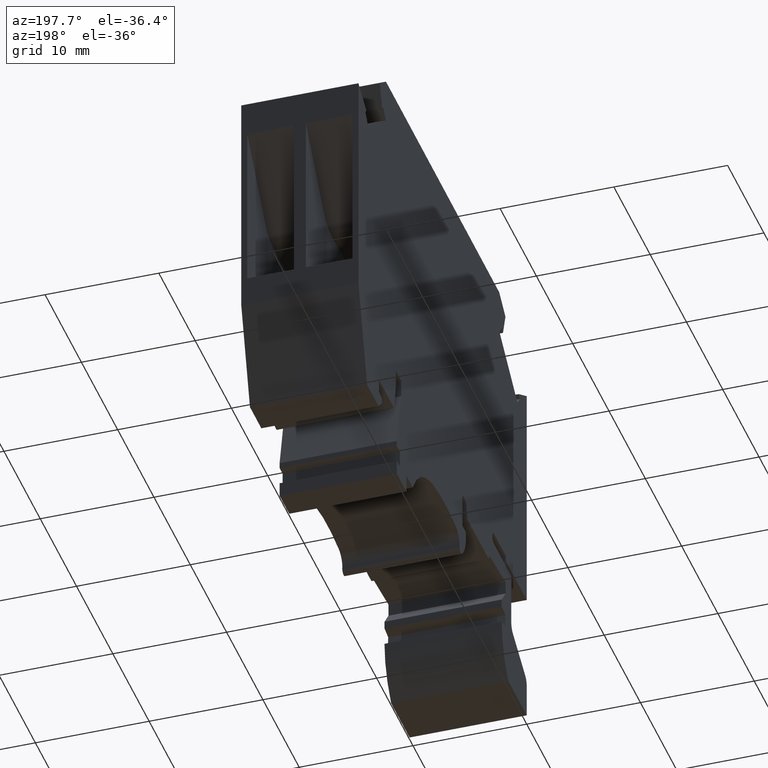
[diagram: clean part render]
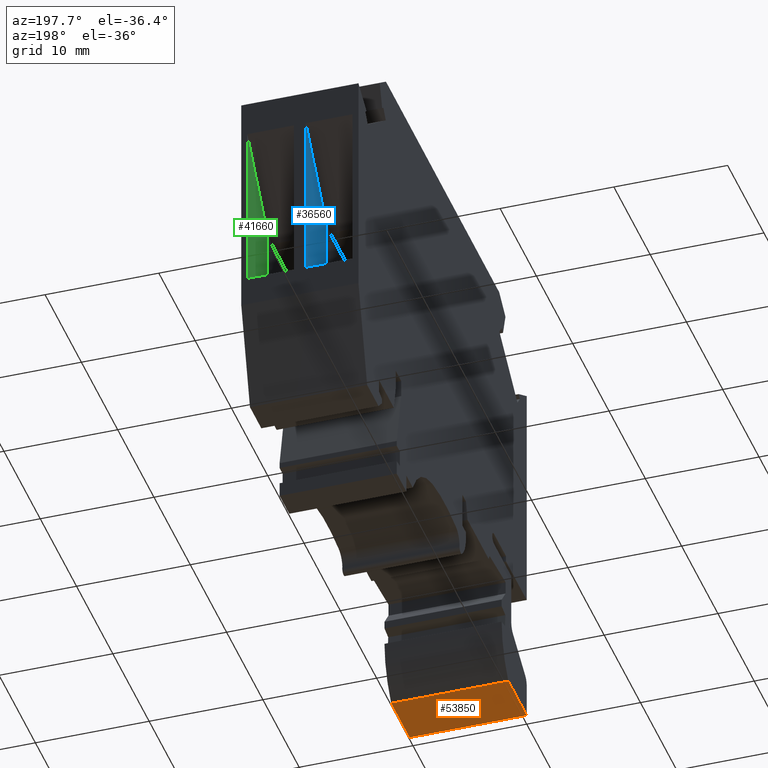
[diagram: same view with three faces highlighted in distinct colors, each labeled with its STEP entity id]
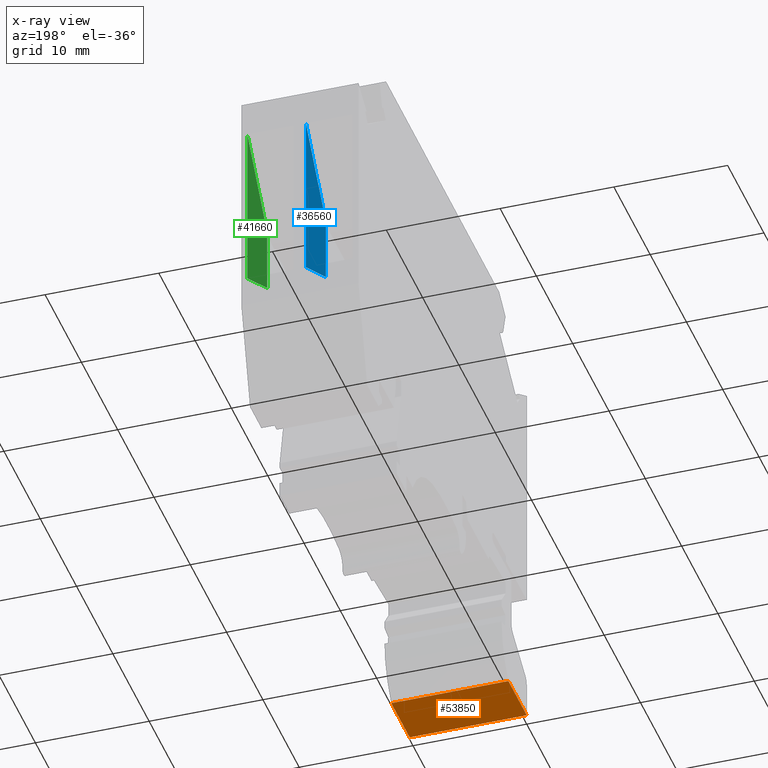
[diagram: x-ray of the same camera — body ghosted, the three highlighted faces saturated]
A machine part, auxiliary view with three faces highlighted in distinct colors.
The next image is the same camera in x-ray (body ghosted, the three faces saturated) — at least one of them is partly hidden behind the body in this view.
Their STEP definitions:

[orange] entity #53850 — the highlighted planar face has unit normal (0, 0, -1).
#4820=CARTESIAN_POINT('',(-39.7810787227897,4.22952375155828,10.3));
#4830=VERTEX_POINT('',#4820);
#4860=CARTESIAN_POINT('',(-56.8069065338077,4.22952375155828,10.3));
#4870=DIRECTION('',(1.,0.,0.));
#4880=VECTOR('',#4870,1.);
#4890=LINE('',#4860,#4880);
#4900=CARTESIAN_POINT('',(-44.8520985338077,4.22952375155828,10.3));
#4910=VERTEX_POINT('',#4900);
#4920=EDGE_CURVE('',#4910,#4830,#4890,.T.);
#6540=CARTESIAN_POINT('',(-44.8520985338077,4.22952375155828,
3.5527136788005E-15));
#6550=VERTEX_POINT('',#6540);
#6580=CARTESIAN_POINT('',(-56.8069065338077,4.22952375155828,
3.5527136788005E-15));
#6590=DIRECTION('',(-1.,0.,0.));
#6600=VECTOR('',#6590,1.);
#6610=LINE('',#6580,#6600);
#6620=CARTESIAN_POINT('',(-39.7810787227897,4.22952375155828,
-7.105427357601E-15));
#6630=VERTEX_POINT('',#6620);
#6640=EDGE_CURVE('',#6630,#6550,#6610,.T.);
#12690=CARTESIAN_POINT('',(-44.8520985338077,4.22952375155828,
-5.14999999999999));
#12700=DIRECTION('',(0.,0.,-1.));
#12710=VECTOR('',#12700,1.);
#12720=LINE('',#12690,#12710);
#12730=EDGE_CURVE('',#4910,#6550,#12720,.T.);
#13000=CARTESIAN_POINT('',(-39.7810787227897,4.22952375155828,5.15));
#13010=DIRECTION('',(0.,0.,1.));
#13020=VECTOR('',#13010,1.);
#13030=LINE('',#13000,#13020);
#13040=EDGE_CURVE('',#6630,#4830,#13030,.T.);
#53740=CARTESIAN_POINT('',(-44.8520985338077,4.22952375155828,5.15));
#53750=DIRECTION('',(-0.,-1.,-0.));
#53760=DIRECTION('',(-1.,0.,0.));
#53770=AXIS2_PLACEMENT_3D('',#53740,#53750,#53760);
#53780=PLANE('',#53770);
#53790=ORIENTED_EDGE('',*,*,#4920,.F.);
#53800=ORIENTED_EDGE('',*,*,#13040,.T.);
#53810=ORIENTED_EDGE('',*,*,#6640,.F.);
#53820=ORIENTED_EDGE('',*,*,#12730,.T.);
#53830=EDGE_LOOP('',(#53820,#53810,#53800,#53790));
#53840=FACE_OUTER_BOUND('',#53830,.T.);
#53850=ADVANCED_FACE('',(#53840),#53780,.T.);

[blue] entity #36560 — the highlighted planar face has unit normal (1, -0, 0).
#33990=CARTESIAN_POINT('',(1.49790146619231,34.3295237515583,4.625));
#34000=VERTEX_POINT('',#33990);
#34030=CARTESIAN_POINT('',(1.49790146619231,10.9158644389662,4.625));
#34040=DIRECTION('',(0.,1.,0.));
#34050=VECTOR('',#34040,1.);
#34060=LINE('',#34030,#34050);
#34070=CARTESIAN_POINT('',(1.49790146619231,19.3295237515583,4.625));
#34080=VERTEX_POINT('',#34070);
#34090=EDGE_CURVE('',#34080,#34000,#34060,.T.);
#34810=CARTESIAN_POINT('',(-4.02565782276799,27.9338235222359,
4.62500000000001));
#34820=VERTEX_POINT('',#34810);
#34870=CARTESIAN_POINT('',(-19.9165433974443,9.53385075155829,4.625));
#34880=DIRECTION('',(-0.653619870346096,-0.756823007769156,0.));
#34890=VECTOR('',#34880,1.);
#34900=LINE('',#34870,#34890);
#34910=EDGE_CURVE('',#34000,#34820,#34900,.T.);
#36140=CARTESIAN_POINT('',(-4.02565782276799,9.53385075155829,
4.62500000000001));
#36150=DIRECTION('',(0.,1.,0.));
#36160=VECTOR('',#36150,1.);
#36170=LINE('',#36140,#36160);
#36180=CARTESIAN_POINT('',(-4.02565782276799,22.1919350430033,
4.62500000000001));
#36190=VERTEX_POINT('',#36180);
#36200=EDGE_CURVE('',#36190,#34820,#36170,.T.);
#36400=CARTESIAN_POINT('',(1.4979014661923,34.3295237515583,4.625));
#36410=DIRECTION('',(0.,-0.,1.));
#36420=DIRECTION('',(0.,1.,0.));
#36430=AXIS2_PLACEMENT_3D('',#36400,#36410,#36420);
#36440=PLANE('',#36430);
#36450=CARTESIAN_POINT('',(13.4527094661923,13.1343196058094,4.625));
#36460=DIRECTION('',(0.887863315807394,-0.460107305357674,0.));
#36470=VECTOR('',#36460,1.);
#36480=LINE('',#36450,#36470);
#36490=EDGE_CURVE('',#36190,#34080,#36480,.T.);
#36500=ORIENTED_EDGE('',*,*,#36490,.F.);
#36510=ORIENTED_EDGE('',*,*,#34090,.F.);
#36520=ORIENTED_EDGE('',*,*,#34910,.F.);
#36530=ORIENTED_EDGE('',*,*,#36200,.T.);
#36540=EDGE_LOOP('',(#36530,#36520,#36510,#36500));
#36550=FACE_OUTER_BOUND('',#36540,.T.);
#36560=ADVANCED_FACE('',(#36550),#36440,.F.);

[green] entity #41660 — the highlighted planar face has unit normal (1, -0, 0).
#34440=CARTESIAN_POINT('',(1.49790146619231,34.3295237515583,9.775));
#34450=VERTEX_POINT('',#34440);
#34480=CARTESIAN_POINT('',(1.49790146619231,10.9158644389662,9.775));
#34490=DIRECTION('',(0.,1.,0.));
#34500=VECTOR('',#34490,1.);
#34510=LINE('',#34480,#34500);
#34520=CARTESIAN_POINT('',(1.49790146619231,19.3295237515583,9.775));
#34530=VERTEX_POINT('',#34520);
#34540=EDGE_CURVE('',#34530,#34450,#34510,.T.);
#39910=CARTESIAN_POINT('',(-4.02565782276799,27.9338235222359,
9.77500000000001));
#39920=VERTEX_POINT('',#39910);
#39970=CARTESIAN_POINT('',(-19.9165433974443,9.53385075155829,9.775));
#39980=DIRECTION('',(-0.653619870346096,-0.756823007769156,0.));
#39990=VECTOR('',#39980,1.);
#40000=LINE('',#39970,#39990);
#40010=EDGE_CURVE('',#34450,#39920,#40000,.T.);
#41240=CARTESIAN_POINT('',(-4.02565782276799,9.53385075155829,
9.77500000000001));
#41250=DIRECTION('',(0.,1.,0.));
#41260=VECTOR('',#41250,1.);
#41270=LINE('',#41240,#41260);
#41280=CARTESIAN_POINT('',(-4.02565782276799,22.1919350430033,
9.77500000000001));
#41290=VERTEX_POINT('',#41280);
#41300=EDGE_CURVE('',#41290,#39920,#41270,.T.);
#41500=CARTESIAN_POINT('',(1.4979014661923,34.3295237515583,9.775));
#41510=DIRECTION('',(0.,-0.,1.));
#41520=DIRECTION('',(0.,1.,0.));
#41530=AXIS2_PLACEMENT_3D('',#41500,#41510,#41520);
#41540=PLANE('',#41530);
#41550=CARTESIAN_POINT('',(13.4527094661923,13.1343196058094,9.775));
#41560=DIRECTION('',(0.887863315807394,-0.460107305357674,0.));
#41570=VECTOR('',#41560,1.);
#41580=LINE('',#41550,#41570);
#41590=EDGE_CURVE('',#41290,#34530,#41580,.T.);
#41600=ORIENTED_EDGE('',*,*,#41590,.F.);
#41610=ORIENTED_EDGE('',*,*,#34540,.F.);
#41620=ORIENTED_EDGE('',*,*,#40010,.F.);
#41630=ORIENTED_EDGE('',*,*,#41300,.T.);
#41640=EDGE_LOOP('',(#41630,#41620,#41610,#41600));
#41650=FACE_OUTER_BOUND('',#41640,.T.);
#41660=ADVANCED_FACE('',(#41650),#41540,.F.);